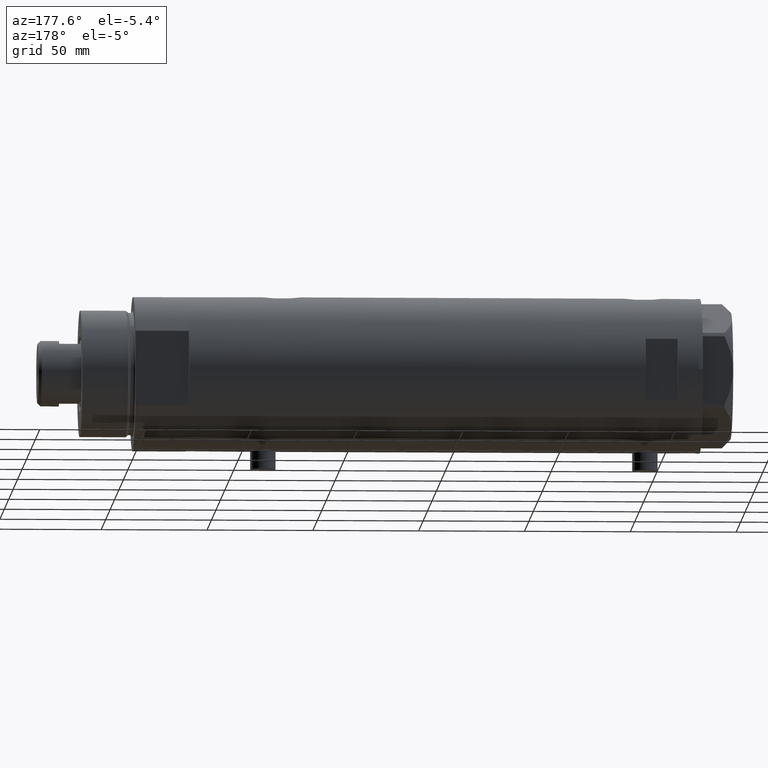
[diagram: clean part render]
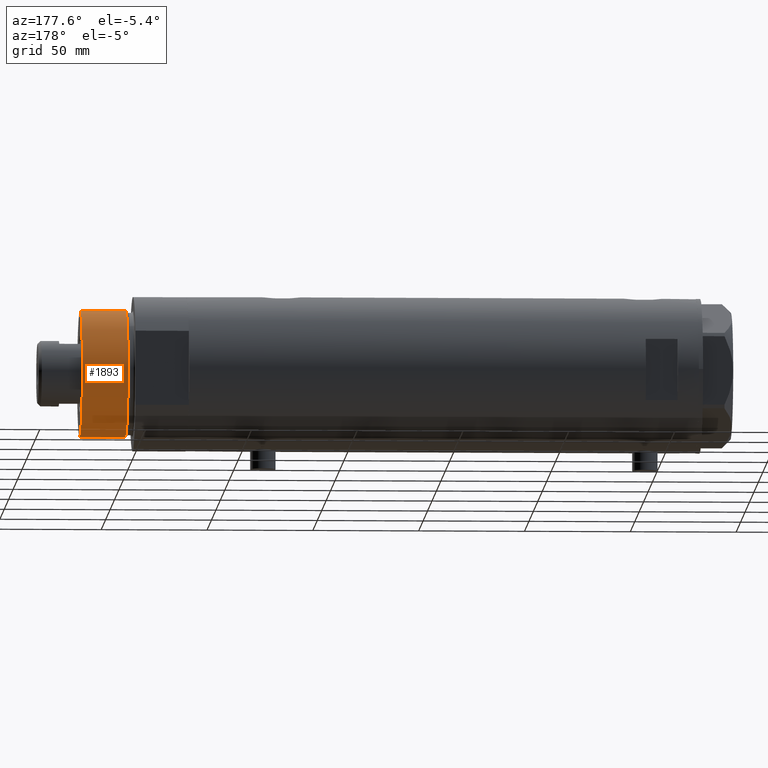
[diagram: same view with one face highlighted and labeled with its STEP entity id]
A machine part, auxiliary view. The second image highlights one B-rep face of the part: STEP entity #1893.
In plain terms, the highlighted cylindrical surface (partial cylindrical patch) has radius 30 mm, axis along (-1, -0, 0).
Its self-contained STEP definition (entity closure, byte-faithful):
#8 = LINE ( 'NONE', #2412, #718 ) ;
#133 = DIRECTION ( 'NONE',  ( -1.000000000000000000, 0.000000000000000000, 0.000000000000000000 ) ) ;
#390 = EDGE_CURVE ( 'NONE', #3138, #2265, #3962, .T. ) ;
#417 = VECTOR ( 'NONE', #4367, 1000.000000000000000 ) ;
#556 = DIRECTION ( 'NONE',  ( 1.000000000000000000, 0.000000000000000000, 0.000000000000000000 ) ) ;
#648 = AXIS2_PLACEMENT_3D ( 'NONE', #1988, #1627, #3023 ) ;
#718 = VECTOR ( 'NONE', #3418, 1000.000000000000000 ) ;
#1406 = VERTEX_POINT ( 'NONE', #2117 ) ;
#1420 = AXIS2_PLACEMENT_3D ( 'NONE', #2183, #1846, #133 ) ;
#1429 = AXIS2_PLACEMENT_3D ( 'NONE', #2264, #2566, #556 ) ;
#1627 = DIRECTION ( 'NONE',  ( -0.000000000000000000, -0.000000000000000000, 1.000000000000000000 ) ) ;
#1830 = EDGE_CURVE ( 'NONE', #1406, #3138, #8, .T. ) ;
#1846 = DIRECTION ( 'NONE',  ( -0.000000000000000000, -0.000000000000000000, -1.000000000000000000 ) ) ;
#1893 = ADVANCED_FACE ( 'NONE', ( #2922 ), #1895, .T. ) ;
#1895 = CYLINDRICAL_SURFACE ( 'NONE', #1420, 30.00000000000000000 ) ;
#1933 = ORIENTED_EDGE ( 'NONE', *, *, #1830, .T. ) ;
#1988 = CARTESIAN_POINT ( 'NONE',  ( 0.000000000000000000, 0.000000000000000000, 28.57384048104054486 ) ) ;
#2070 = EDGE_LOOP ( 'NONE', ( #4401, #1933, #3567, #3502 ) ) ;
#2117 = CARTESIAN_POINT ( 'NONE',  ( 30.00000000000000000, 3.673940397442058389E-15, 50.19999999999999574 ) ) ;
#2131 = CARTESIAN_POINT ( 'NONE',  ( -30.00000000000000000, 0.000000000000000000, 50.19999999999999574 ) ) ;
#2161 = EDGE_CURVE ( 'NONE', #3731, #2265, #3776, .T. ) ;
#2183 = CARTESIAN_POINT ( 'NONE',  ( 0.000000000000000000, 0.000000000000000000, 50.19999999999999574 ) ) ;
#2264 = CARTESIAN_POINT ( 'NONE',  ( 0.000000000000000000, 0.000000000000000000, 50.19999999999999574 ) ) ;
#2265 = VERTEX_POINT ( 'NONE', #3654 ) ;
#2412 = CARTESIAN_POINT ( 'NONE',  ( 30.00000000000000000, 3.673940397442058389E-15, 50.19999999999999574 ) ) ;
#2566 = DIRECTION ( 'NONE',  ( 0.000000000000000000, 0.000000000000000000, 1.000000000000000000 ) ) ;
#2922 = FACE_OUTER_BOUND ( 'NONE', #2070, .T. ) ;
#3023 = DIRECTION ( 'NONE',  ( 1.000000000000000000, 0.000000000000000000, 0.000000000000000000 ) ) ;
#3112 = CIRCLE ( 'NONE', #1429, 30.00000000000000000 ) ;
#3138 = VERTEX_POINT ( 'NONE', #3986 ) ;
#3418 = DIRECTION ( 'NONE',  ( -0.000000000000000000, -0.000000000000000000, -1.000000000000000000 ) ) ;
#3502 = ORIENTED_EDGE ( 'NONE', *, *, #2161, .F. ) ;
#3567 = ORIENTED_EDGE ( 'NONE', *, *, #390, .T. ) ;
#3613 = EDGE_CURVE ( 'NONE', #1406, #3731, #3112, .T. ) ;
#3654 = CARTESIAN_POINT ( 'NONE',  ( -30.00000000000000000, 0.000000000000000000, 28.57384048104054486 ) ) ;
#3731 = VERTEX_POINT ( 'NONE', #2131 ) ;
#3776 = LINE ( 'NONE', #4393, #417 ) ;
#3962 = CIRCLE ( 'NONE', #648, 30.00000000000000000 ) ;
#3986 = CARTESIAN_POINT ( 'NONE',  ( 30.00000000000000000, 3.673940397442058389E-15, 28.57384048104054486 ) ) ;
#4367 = DIRECTION ( 'NONE',  ( -0.000000000000000000, -0.000000000000000000, -1.000000000000000000 ) ) ;
#4393 = CARTESIAN_POINT ( 'NONE',  ( -30.00000000000000000, 0.000000000000000000, 50.19999999999999574 ) ) ;
#4401 = ORIENTED_EDGE ( 'NONE', *, *, #3613, .F. ) ;